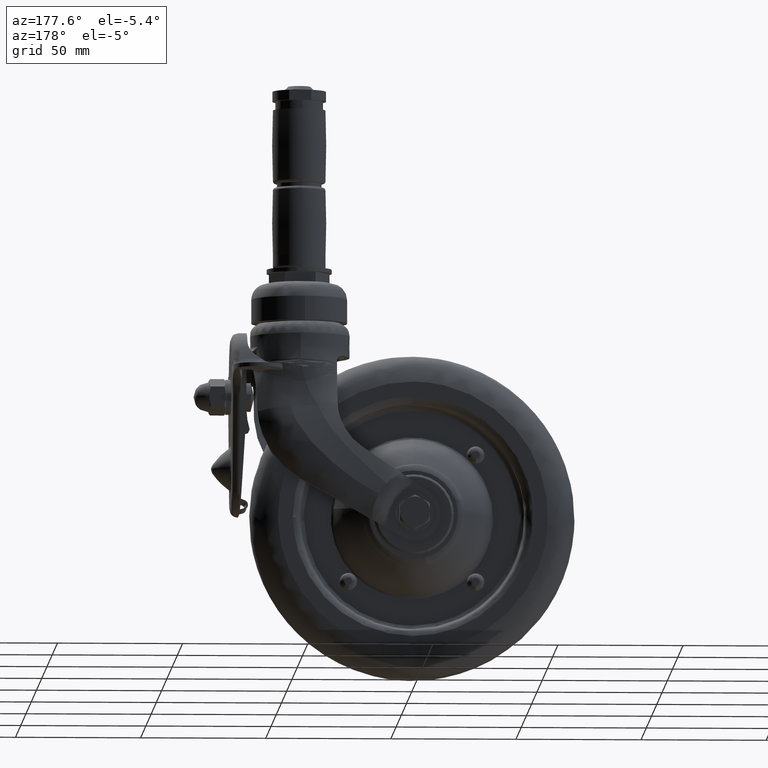
[diagram: clean part render]
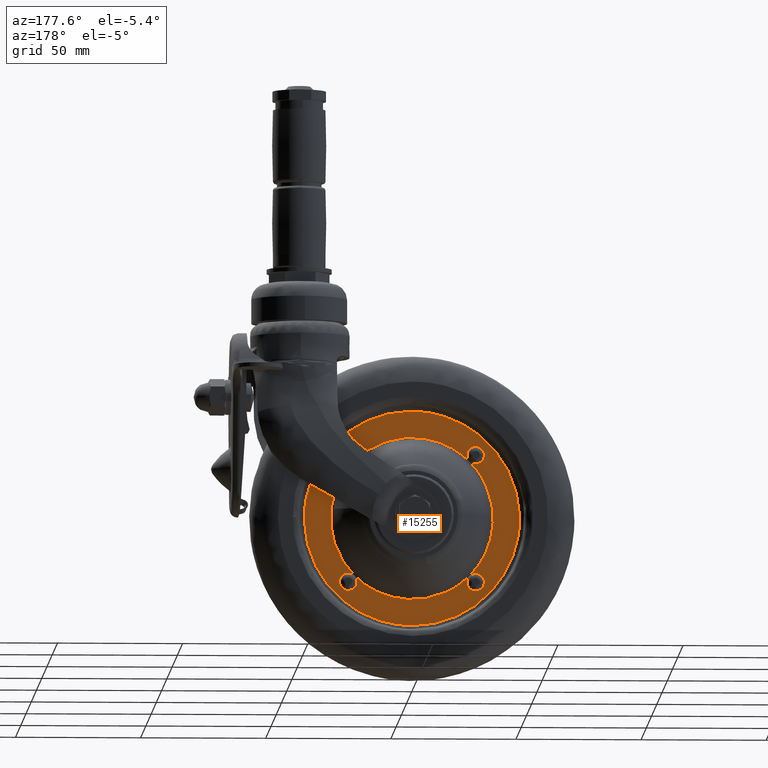
[diagram: same view with one face highlighted and labeled with its STEP entity id]
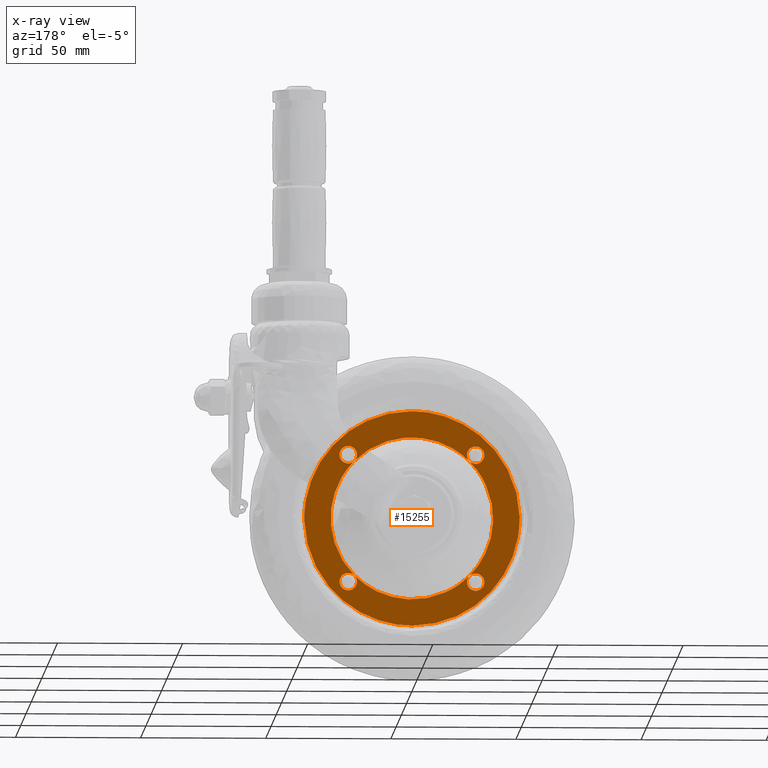
[diagram: x-ray of the same camera — body ghosted, the highlighted face saturated]
A machine part, auxiliary view. The second image highlights one B-rep face of the part: STEP entity #15255.
The next image is the same camera in x-ray: the body ghosted, the highlighted face saturated — about 0% of this face is hidden behind the body in this view.
In plain terms, the highlighted face is a freeform B-spline surface patch.
Its self-contained STEP definition (entity closure, byte-faithful):
#10958=CARTESIAN_POINT('',(-29.581760012808711,1.500000000000001,13.468716156602580));
#10959=VERTEX_POINT('',#10958);
#10973=CARTESIAN_POINT('',(-23.090573033364201,1.500000000000000,22.876019731878198));
#10974=VERTEX_POINT('',#10973);
#10975=CARTESIAN_POINT('',(-23.090573033364191,1.500000000000000,22.876019731878198));
#10976=CARTESIAN_POINT('',(-27.176240963526467,1.500000000000000,18.752032480721009));
#10977=CARTESIAN_POINT('',(-29.581760012808708,1.500000000000000,13.468716156602582));
#10985=(BOUNDED_CURVE()B_SPLINE_CURVE(2,(#10975,#10976,#10977),.UNSPECIFIED.,.F.,.U.)B_SPLINE_CURVE_WITH_KNOTS((3,3),(0.0,0.236393661518218),.UNSPECIFIED.)CURVE()GEOMETRIC_REPRESENTATION_ITEM()RATIONAL_B_SPLINE_CURVE((1.0,0.931540284204162,0.895447454175274))REPRESENTATION_ITEM(''));
#10986=EDGE_CURVE('',#10974,#10959,#10985,.T.);
#10988=CARTESIAN_POINT('',(-22.876019731878099,1.500000000000000,23.090573033364301));
#10989=VERTEX_POINT('',#10988);
#10998=CARTESIAN_POINT('',(22.876019731878198,1.500000000000000,23.090573033364201));
#10999=VERTEX_POINT('',#10998);
#11000=CARTESIAN_POINT('',(22.876019731878198,1.500000000000000,23.090573033364191));
#11001=CARTESIAN_POINT('',(1.040834E-013,1.500000000000000,45.754033053049710));
#11002=CARTESIAN_POINT('',(-22.876019731878088,1.500000000000000,23.090573033364290));
#11010=(BOUNDED_CURVE()B_SPLINE_CURVE(2,(#11000,#11001,#11002),.UNSPECIFIED.,.F.,.U.)CURVE()GEOMETRIC_REPRESENTATION_ITEM()QUASI_UNIFORM_CURVE()RATIONAL_B_SPLINE_CURVE((1.0,0.710399528666881,1.0))REPRESENTATION_ITEM(''));
#11011=EDGE_CURVE('',#10999,#10989,#11010,.T.);
#11013=CARTESIAN_POINT('',(23.090573033364301,1.500000000000000,22.876019731878099));
#11014=VERTEX_POINT('',#11013);
#11023=CARTESIAN_POINT('',(23.090573033364201,1.500000000000000,-22.876019731878198));
#11024=VERTEX_POINT('',#11023);
#11025=CARTESIAN_POINT('',(23.090573033364191,1.500000000000000,-22.876019731878191));
#11026=CARTESIAN_POINT('',(45.754033053049710,1.500000000000000,-9.714451E-014));
#11027=CARTESIAN_POINT('',(23.090573033364290,1.500000000000000,22.876019731878088));
#11035=(BOUNDED_CURVE()B_SPLINE_CURVE(2,(#11025,#11026,#11027),.UNSPECIFIED.,.F.,.U.)CURVE()GEOMETRIC_REPRESENTATION_ITEM()QUASI_UNIFORM_CURVE()RATIONAL_B_SPLINE_CURVE((1.0,0.710399528666881,1.0))REPRESENTATION_ITEM(''));
#11036=EDGE_CURVE('',#11024,#11014,#11035,.T.);
#11038=CARTESIAN_POINT('',(22.876019731878099,1.500000000000000,-23.090573033364301));
#11039=VERTEX_POINT('',#11038);
#11048=CARTESIAN_POINT('',(-13.468716156602580,1.500000000000001,-29.581760012808711));
#11049=VERTEX_POINT('',#11048);
#11050=CARTESIAN_POINT('',(-13.468716156602582,1.500000000000000,-29.581760012808708));
#11051=CARTESIAN_POINT('',(6.943162200138012,1.500000000000001,-38.875385422153393));
#11052=CARTESIAN_POINT('',(22.876019731878088,1.500000000000000,-23.090573033364290));
#11060=(BOUNDED_CURVE()B_SPLINE_CURVE(2,(#11050,#11051,#11052),.UNSPECIFIED.,.F.,.U.)B_SPLINE_CURVE_WITH_KNOTS((3,3),(0.236393661518218,1.0),.UNSPECIFIED.)CURVE()GEOMETRIC_REPRESENTATION_ITEM()RATIONAL_B_SPLINE_CURVE((0.895447454175274,0.778859244462718,1.0))REPRESENTATION_ITEM(''));
#11061=EDGE_CURVE('',#11049,#11039,#11060,.T.);
#11112=CARTESIAN_POINT('',(-22.876019731878198,1.500000000000000,-23.090573033364201));
#11113=VERTEX_POINT('',#11112);
#11114=CARTESIAN_POINT('',(-22.876019731878198,1.500000000000000,-23.090573033364180));
#11115=CARTESIAN_POINT('',(-18.752032480721009,1.500000000000000,-27.176240963526453));
#11116=CARTESIAN_POINT('',(-13.468716156602582,1.500000000000000,-29.581760012808708));
#11124=(BOUNDED_CURVE()B_SPLINE_CURVE(2,(#11114,#11115,#11116),.UNSPECIFIED.,.F.,.U.)B_SPLINE_CURVE_WITH_KNOTS((3,3),(0.0,0.236393661518218),.UNSPECIFIED.)CURVE()GEOMETRIC_REPRESENTATION_ITEM()RATIONAL_B_SPLINE_CURVE((1.0,0.931540284204162,0.895447454175274))REPRESENTATION_ITEM(''));
#11125=EDGE_CURVE('',#11113,#11049,#11124,.T.);
#11127=CARTESIAN_POINT('',(-23.090573033364301,1.500000000000000,-22.876019731878099));
#11128=VERTEX_POINT('',#11127);
#11137=CARTESIAN_POINT('',(-29.581760012808708,1.500000000000000,13.468716156602582));
#11138=CARTESIAN_POINT('',(-38.875385422153393,1.500000000000001,-6.943162200138013));
#11139=CARTESIAN_POINT('',(-23.090573033364290,1.500000000000000,-22.876019731878088));
#11147=(BOUNDED_CURVE()B_SPLINE_CURVE(2,(#11137,#11138,#11139),.UNSPECIFIED.,.F.,.U.)B_SPLINE_CURVE_WITH_KNOTS((3,3),(0.236393661518218,1.0),.UNSPECIFIED.)CURVE()GEOMETRIC_REPRESENTATION_ITEM()RATIONAL_B_SPLINE_CURVE((0.895447454175274,0.778859244462718,1.0))REPRESENTATION_ITEM(''));
#11148=EDGE_CURVE('',#10959,#11128,#11147,.T.);
#11177=CARTESIAN_POINT('',(0.0,1.500000000000000,-43.0));
#11178=VERTEX_POINT('',#11177);
#11179=CARTESIAN_POINT('',(-42.986420139943426,1.500000000000000,1.080594104088993));
#11180=VERTEX_POINT('',#11179);
#11181=CARTESIAN_POINT('',(0.0,1.500000000000000,-43.0));
#11182=CARTESIAN_POINT('',(-42.999999999999993,1.500000000000000,-42.999999999999993));
#11183=CARTESIAN_POINT('',(-43.0,1.500000000000000,0.0));
#11184=CARTESIAN_POINT('',(-43.0,1.500000000000000,0.540382381311651));
#11185=CARTESIAN_POINT('',(-42.986420139943441,1.500000000000000,1.080594104088993));
#11193=(BOUNDED_CURVE()B_SPLINE_CURVE(2,(#11181,#11182,#11183,#11184,#11185),.UNSPECIFIED.,.F.,.U.)B_SPLINE_CURVE_WITH_KNOTS((3,2,3),(0.0,0.250000000000000,0.254420108230244),.UNSPECIFIED.)CURVE()GEOMETRIC_REPRESENTATION_ITEM()RATIONAL_B_SPLINE_CURVE((1.0,0.707106781186548,1.0,0.994821521091760,0.989826157681460))REPRESENTATION_ITEM(''));
#11194=EDGE_CURVE('',#11178,#11180,#11193,.T.);
#11196=CARTESIAN_POINT('',(42.986420139943426,1.500000000000000,-1.080594104088997));
#11197=VERTEX_POINT('',#11196);
#11198=CARTESIAN_POINT('',(42.986420139943434,1.500000000000001,-1.080594104088997));
#11199=CARTESIAN_POINT('',(41.932648675755544,1.500000000000001,-43.0));
#11200=CARTESIAN_POINT('',(0.0,1.500000000000000,-43.0));
#11208=(BOUNDED_CURVE()B_SPLINE_CURVE(2,(#11198,#11199,#11200),.UNSPECIFIED.,.F.,.U.)B_SPLINE_CURVE_WITH_KNOTS((3,3),(0.754420108230244,1.0),.UNSPECIFIED.)CURVE()GEOMETRIC_REPRESENTATION_ITEM()RATIONAL_B_SPLINE_CURVE((0.989826157681460,0.712285260094788,1.0))REPRESENTATION_ITEM(''));
#11209=EDGE_CURVE('',#11197,#11178,#11208,.T.);
#11266=CARTESIAN_POINT('',(0.0,1.500000000000000,43.0));
#11267=VERTEX_POINT('',#11266);
#11268=CARTESIAN_POINT('',(-42.986420139943441,1.500000000000001,1.080594104088993));
#11269=CARTESIAN_POINT('',(-41.932648675755544,1.500000000000001,43.000000000000007));
#11270=CARTESIAN_POINT('',(0.0,1.500000000000000,43.0));
#11278=(BOUNDED_CURVE()B_SPLINE_CURVE(2,(#11268,#11269,#11270),.UNSPECIFIED.,.F.,.U.)B_SPLINE_CURVE_WITH_KNOTS((3,3),(0.254420108230244,0.500000000000000),.UNSPECIFIED.)CURVE()GEOMETRIC_REPRESENTATION_ITEM()RATIONAL_B_SPLINE_CURVE((0.989826157681460,0.712285260094788,1.0))REPRESENTATION_ITEM(''));
#11279=EDGE_CURVE('',#11180,#11267,#11278,.T.);
#11286=CARTESIAN_POINT('',(0.0,1.500000000000000,43.0));
#11287=CARTESIAN_POINT('',(42.999999999999993,1.500000000000000,42.999999999999993));
#11288=CARTESIAN_POINT('',(43.0,1.500000000000000,0.0));
#11289=CARTESIAN_POINT('',(43.0,1.500000000000000,-0.540382381311706));
#11290=CARTESIAN_POINT('',(42.986420139943441,1.500000000000000,-1.080594104088997));
#11298=(BOUNDED_CURVE()B_SPLINE_CURVE(2,(#11286,#11287,#11288,#11289,#11290),.UNSPECIFIED.,.F.,.U.)B_SPLINE_CURVE_WITH_KNOTS((3,2,3),(0.500000000000000,0.750000000000000,0.754420108230244),.UNSPECIFIED.)CURVE()GEOMETRIC_REPRESENTATION_ITEM()RATIONAL_B_SPLINE_CURVE((1.0,0.707106781186548,1.0,0.994821521091759,0.989826157681459))REPRESENTATION_ITEM(''));
#11299=EDGE_CURVE('',#11267,#11197,#11298,.T.);
#13713=CARTESIAN_POINT('',(-22.181561318949619,1.499999999984508,24.219287117129589));
#13714=VERTEX_POINT('',#13713);
#13715=CARTESIAN_POINT('',(-25.455841893200571,1.499997165853552,21.955844000005278));
#13716=VERTEX_POINT('',#13715);
#13717=CARTESIAN_POINT('',(-22.181561318949619,1.499999999984508,24.219287117129593));
#13718=CARTESIAN_POINT('',(-21.364163506599862,1.500001355037114,26.383677238332702));
#13719=CARTESIAN_POINT('',(-23.035202796993332,1.500001024170816,27.983787069409441));
#13720=CARTESIAN_POINT('',(-25.508925810327170,1.500000534372891,30.352509657652263));
#13721=CARTESIAN_POINT('',(-27.930717734209662,1.499998135425211,27.930717734005469));
#13722=CARTESIAN_POINT('',(-30.352509658092160,1.499995736477532,25.508925810358679));
#13723=CARTESIAN_POINT('',(-27.983787069948779,1.499996122265477,23.035202796935611));
#13724=CARTESIAN_POINT('',(-26.950242214857859,1.499996290596353,21.955843100599274));
#13725=CARTESIAN_POINT('',(-25.455841893200578,1.499997165853551,21.955844000005278));
#13733=(BOUNDED_CURVE()B_SPLINE_CURVE(2,(#13717,#13718,#13719,#13720,#13721,#13722,#13723,#13724,#13725),.UNSPECIFIED.,.F.,.U.)B_SPLINE_CURVE_WITH_KNOTS((3,2,2,2,3),(0.063894018477753,0.250000000000000,0.500000000000000,0.750000000000000,0.879983629714468),.UNSPECIFIED.)CURVE()GEOMETRIC_REPRESENTATION_ITEM()RATIONAL_B_SPLINE_CURVE((0.891450843555783,0.787638266009961,1.0,0.714730106666866,1.0,0.714730106666866,1.0,0.851678335265200,0.857591777310574))REPRESENTATION_ITEM(''));
#13734=EDGE_CURVE('',#13714,#13716,#13733,.T.);
#13834=CARTESIAN_POINT('',(-22.876019731878099,1.499999999999946,23.090573033364301));
#13835=CARTESIAN_POINT('',(-22.419978413175297,1.499999999999946,23.587981777584925));
#13836=CARTESIAN_POINT('',(-22.181561318949619,1.499999999984508,24.219287117129593));
#13844=(BOUNDED_CURVE()B_SPLINE_CURVE(2,(#13834,#13835,#13836),.UNSPECIFIED.,.F.,.U.)B_SPLINE_CURVE_WITH_KNOTS((3,3),(0.0,0.063894018477753),.UNSPECIFIED.)CURVE()GEOMETRIC_REPRESENTATION_ITEM()RATIONAL_B_SPLINE_CURVE((1.0,0.927091840656905,0.891450843555783))REPRESENTATION_ITEM(''));
#13845=EDGE_CURVE('',#10989,#13714,#13844,.T.);
#13848=CARTESIAN_POINT('',(-25.455841893200578,1.499997165853551,21.955844000005278));
#13849=CARTESIAN_POINT('',(-24.094216845445022,1.499998582926776,21.955844819623170));
#13850=CARTESIAN_POINT('',(-23.090573033364201,1.500000000000000,22.876019731878198));
#13858=(BOUNDED_CURVE()B_SPLINE_CURVE(2,(#13848,#13849,#13850),.UNSPECIFIED.,.F.,.U.)B_SPLINE_CURVE_WITH_KNOTS((3,3),(0.879983629714468,1.0),.UNSPECIFIED.)CURVE()GEOMETRIC_REPRESENTATION_ITEM()RATIONAL_B_SPLINE_CURVE((0.857591777310574,0.863051771401666,1.0))REPRESENTATION_ITEM(''));
#13859=EDGE_CURVE('',#13716,#10974,#13858,.T.);
#13950=CARTESIAN_POINT('',(27.673094834699270,1.499999999992371,22.747745269151011));
#13951=VERTEX_POINT('',#13950);
#13952=CARTESIAN_POINT('',(27.673094834699274,1.499999999992371,22.747745269151011));
#13953=CARTESIAN_POINT('',(27.837147849069019,1.499999999999946,22.882063371612151));
#13954=CARTESIAN_POINT('',(27.983787070010059,1.499999999999946,23.035202796767152));
#13955=CARTESIAN_POINT('',(30.352509658176047,1.499999999999946,25.508925810129686));
#13956=CARTESIAN_POINT('',(27.930717734152910,1.499999999999946,27.930717734152822));
#13957=CARTESIAN_POINT('',(25.508925810129785,1.499999999999946,30.352509658175947));
#13958=CARTESIAN_POINT('',(23.035202796767241,1.499999999999946,27.983787070009960));
#13959=CARTESIAN_POINT('',(20.561479783404700,1.499999999999946,25.615064481843973));
#13960=CARTESIAN_POINT('',(22.876019731878198,1.500000000000000,23.090573033364201));
#13968=(BOUNDED_CURVE()B_SPLINE_CURVE(2,(#13952,#13953,#13954,#13955,#13956,#13957,#13958,#13959,#13960),.UNSPECIFIED.,.F.,.U.)B_SPLINE_CURVE_WITH_KNOTS((3,2,2,2,3),(0.228868347797814,0.250000000000000,0.500000000000000,0.750000000000000,1.0),.UNSPECIFIED.)CURVE()GEOMETRIC_REPRESENTATION_ITEM()RATIONAL_B_SPLINE_CURVE((0.955850569412244,0.975887103321317,1.0,0.714730106666866,1.0,0.714730106666866,1.0,0.714730106666866,1.0))REPRESENTATION_ITEM(''));
#13969=EDGE_CURVE('',#13951,#10999,#13968,.T.);
#14022=CARTESIAN_POINT('',(25.455844000000290,1.499999999982141,21.955843999999910));
#14023=VERTEX_POINT('',#14022);
#14039=CARTESIAN_POINT('',(23.090573033364301,1.500000000000000,22.876019731878099));
#14040=CARTESIAN_POINT('',(24.094217739413878,1.499999999999946,21.955843999999679));
#14041=CARTESIAN_POINT('',(25.455844000000290,1.499999999982140,21.955843999999900));
#14049=(BOUNDED_CURVE()B_SPLINE_CURVE(2,(#14039,#14040,#14041),.UNSPECIFIED.,.F.,.U.)B_SPLINE_CURVE_WITH_KNOTS((3,3),(0.0,0.120016462546926),.UNSPECIFIED.)CURVE()GEOMETRIC_REPRESENTATION_ITEM()RATIONAL_B_SPLINE_CURVE((1.0,0.863051666124074,0.857591768916019))REPRESENTATION_ITEM(''));
#14050=EDGE_CURVE('',#11014,#14023,#14049,.T.);
#14085=CARTESIAN_POINT('',(25.455844000000290,1.499999999982140,21.955843999999900));
#14086=CARTESIAN_POINT('',(26.705884995466914,1.499999999999947,21.955844000000109));
#14087=CARTESIAN_POINT('',(27.673094834699270,1.499999999992371,22.747745269151004));
#14095=(BOUNDED_CURVE()B_SPLINE_CURVE(2,(#14085,#14086,#14087),.UNSPECIFIED.,.F.,.U.)B_SPLINE_CURVE_WITH_KNOTS((3,3),(0.120016462546926,0.228868347797813),.UNSPECIFIED.)CURVE()GEOMETRIC_REPRESENTATION_ITEM()RATIONAL_B_SPLINE_CURVE((0.857591768916019,0.852639780732394,0.955850569412244))REPRESENTATION_ITEM(''));
#14096=EDGE_CURVE('',#14023,#13951,#14095,.T.);
#14187=CARTESIAN_POINT('',(27.673094834724068,1.499999999993257,-28.163942730828509));
#14188=VERTEX_POINT('',#14187);
#14189=CARTESIAN_POINT('',(27.673094834724065,1.499999999993257,-28.163942730828513));
#14190=CARTESIAN_POINT('',(27.807702581467531,1.499999999999946,-28.053732886838198));
#14191=CARTESIAN_POINT('',(27.930717734152822,1.499999999999946,-27.930717734152910));
#14192=CARTESIAN_POINT('',(30.352509658175933,1.499999999999946,-25.508925810129785));
#14193=CARTESIAN_POINT('',(27.983787070009960,1.499999999999946,-23.035202796767241));
#14194=CARTESIAN_POINT('',(25.615064481843973,1.499999999999946,-20.561479783404685));
#14195=CARTESIAN_POINT('',(23.090573033364201,1.499999999999946,-22.876019731878198));
#14203=(BOUNDED_CURVE()B_SPLINE_CURVE(2,(#14189,#14190,#14191,#14192,#14193,#14194,#14195),.UNSPECIFIED.,.F.,.U.)B_SPLINE_CURVE_WITH_KNOTS((3,2,2,3),(0.482585822308116,0.500000000000000,0.750000000000000,1.0),.UNSPECIFIED.)CURVE()GEOMETRIC_REPRESENTATION_ITEM()RATIONAL_B_SPLINE_CURVE((0.963026366867004,0.980129037549408,1.0,0.714730106666866,1.0,0.714730106666866,1.0))REPRESENTATION_ITEM(''));
#14204=EDGE_CURVE('',#14188,#11024,#14203,.T.);
#14257=CARTESIAN_POINT('',(25.455842650181008,1.499994559010442,-28.955843999984669));
#14258=VERTEX_POINT('',#14257);
#14274=CARTESIAN_POINT('',(22.876019731878099,1.500000000000000,-23.090573033364301));
#14275=CARTESIAN_POINT('',(20.561479783404600,1.499998829061873,-25.615064481840836));
#14276=CARTESIAN_POINT('',(23.035202796767152,1.499996142158772,-27.983787069999380));
#14277=CARTESIAN_POINT('',(24.050348373186431,1.499995039530151,-28.955843457939512));
#14278=CARTESIAN_POINT('',(25.455842650181019,1.499994559010443,-28.955843999984676));
#14286=(BOUNDED_CURVE()B_SPLINE_CURVE(2,(#14274,#14275,#14276,#14277,#14278),.UNSPECIFIED.,.F.,.U.)B_SPLINE_CURVE_WITH_KNOTS((3,2,3),(0.0,0.250000000000000,0.373338891886438),.UNSPECIFIED.)CURVE()GEOMETRIC_REPRESENTATION_ITEM()RATIONAL_B_SPLINE_CURVE((1.0,0.714730106666866,1.0,0.859260509870915,0.857390241799299))REPRESENTATION_ITEM(''));
#14287=EDGE_CURVE('',#11039,#14258,#14286,.T.);
#14336=CARTESIAN_POINT('',(25.455842650181019,1.499994559010443,-28.955843999984676));
#14337=CARTESIAN_POINT('',(26.705884407112073,1.499997279501850,-28.955844481736328));
#14338=CARTESIAN_POINT('',(27.673094834724072,1.499999999993258,-28.163942730828509));
#14346=(BOUNDED_CURVE()B_SPLINE_CURVE(2,(#14336,#14337,#14338),.UNSPECIFIED.,.F.,.U.)B_SPLINE_CURVE_WITH_KNOTS((3,3),(0.373338891886438,0.482585822308117),.UNSPECIFIED.)CURVE()GEOMETRIC_REPRESENTATION_ITEM()RATIONAL_B_SPLINE_CURVE((0.857390241799299,0.855733659331558,0.963026366867004))REPRESENTATION_ITEM(''));
#14347=EDGE_CURVE('',#14258,#14188,#14346,.T.);
#14438=CARTESIAN_POINT('',(-22.607452873219788,1.499999999990154,-27.489724033059812));
#14439=VERTEX_POINT('',#14438);
#14440=CARTESIAN_POINT('',(-22.607452873219795,1.499999999990154,-27.489724033059808));
#14441=CARTESIAN_POINT('',(-20.959149567873009,1.499999999999946,-25.181322143168348));
#14442=CARTESIAN_POINT('',(-22.876019731878198,1.499999999999946,-23.090573033364201));
#14450=(BOUNDED_CURVE()B_SPLINE_CURVE(2,(#14440,#14441,#14442),.UNSPECIFIED.,.F.,.U.)B_SPLINE_CURVE_WITH_KNOTS((3,3),(0.782282380347794,1.0),.UNSPECIFIED.)CURVE()GEOMETRIC_REPRESENTATION_ITEM()RATIONAL_B_SPLINE_CURVE((0.935839898027909,0.751566871460284,1.0))REPRESENTATION_ITEM(''));
#14451=EDGE_CURVE('',#14439,#11113,#14450,.T.);
#14504=CARTESIAN_POINT('',(-25.455842650181111,1.499994559010442,-28.955843999984570));
#14505=VERTEX_POINT('',#14504);
#14521=CARTESIAN_POINT('',(-23.090573033364301,1.500000000000000,-22.876019731878099));
#14522=CARTESIAN_POINT('',(-25.615064481844083,1.500001035670960,-20.561479783407471));
#14523=CARTESIAN_POINT('',(-27.983787070010059,1.499998396603284,-23.035202796762711));
#14524=CARTESIAN_POINT('',(-30.352509658176047,1.499995757535608,-25.508925810117962));
#14525=CARTESIAN_POINT('',(-27.930717734152910,1.499994607443906,-27.930717734137890));
#14526=CARTESIAN_POINT('',(-26.905590909192490,1.499994120618492,-28.955844559096956));
#14527=CARTESIAN_POINT('',(-25.455842650181111,1.499994559010443,-28.955843999984566));
#14535=(BOUNDED_CURVE()B_SPLINE_CURVE(2,(#14521,#14522,#14523,#14524,#14525,#14526,#14527),.UNSPECIFIED.,.F.,.U.)B_SPLINE_CURVE_WITH_KNOTS((3,2,2,3),(0.0,0.250000000000000,0.500000000000000,0.626661108113562),.UNSPECIFIED.)CURVE()GEOMETRIC_REPRESENTATION_ITEM()RATIONAL_B_SPLINE_CURVE((1.0,0.714730106666866,1.0,0.714730106666866,1.0,0.855469596795950,0.857390241799299))REPRESENTATION_ITEM(''));
#14536=EDGE_CURVE('',#11128,#14505,#14535,.T.);
#14571=CARTESIAN_POINT('',(-25.455842650181111,1.499994559010443,-28.955843999984566));
#14572=CARTESIAN_POINT('',(-24.050348373421141,1.499996681465336,-28.955843458272525));
#14573=CARTESIAN_POINT('',(-23.035202797254829,1.499998970012650,-27.983787070689960));
#14574=CARTESIAN_POINT('',(-22.798164351890300,1.499999504392852,-27.756810033771377));
#14575=CARTESIAN_POINT('',(-22.607452873219792,1.499999999990154,-27.489724033059812));
#14583=(BOUNDED_CURVE()B_SPLINE_CURVE(2,(#14571,#14572,#14573,#14574,#14575),.UNSPECIFIED.,.F.,.U.)B_SPLINE_CURVE_WITH_KNOTS((3,2,3),(0.626661108113562,0.750000000000000,0.782282380347793),.UNSPECIFIED.)CURVE()GEOMETRIC_REPRESENTATION_ITEM()RATIONAL_B_SPLINE_CURVE((0.857390241799299,0.859260509870915,1.0,0.963163235206581,0.935839898027910))REPRESENTATION_ITEM(''));
#14584=EDGE_CURVE('',#14505,#14439,#14583,.T.);
#15224=CARTESIAN_POINT('',(-47.280763345291739,1.500000000000000,47.295699833315318));
#15225=CARTESIAN_POINT('',(-47.280763345291739,1.500000000000000,-47.295702140015067));
#15226=CARTESIAN_POINT('',(47.280765651263003,1.500000000000000,47.295699833315318));
#15227=CARTESIAN_POINT('',(47.280765651263003,1.500000000000000,-47.295702140015067));
#15228=B_SPLINE_SURFACE_WITH_KNOTS('',1,1,((#15224,#15226),(#15225,#15227)),.UNSPECIFIED.,.F.,.F.,.U.,(2,2),(2,2),(0.0,94.591401973330392),(0.0,94.561528996554742),.UNSPECIFIED.);
#15229=ORIENTED_EDGE('',*,*,#11194,.T.);
#15230=ORIENTED_EDGE('',*,*,#11279,.T.);
#15231=ORIENTED_EDGE('',*,*,#11299,.T.);
#15232=ORIENTED_EDGE('',*,*,#11209,.T.);
#15233=EDGE_LOOP('',(#15229,#15230,#15231,#15232));
#15234=FACE_OUTER_BOUND('',#15233,.T.);
#15235=ORIENTED_EDGE('',*,*,#11011,.T.);
#15236=ORIENTED_EDGE('',*,*,#13845,.T.);
#15237=ORIENTED_EDGE('',*,*,#13734,.T.);
#15238=ORIENTED_EDGE('',*,*,#13859,.T.);
#15239=ORIENTED_EDGE('',*,*,#10986,.T.);
#15240=ORIENTED_EDGE('',*,*,#11148,.T.);
#15241=ORIENTED_EDGE('',*,*,#14536,.T.);
#15242=ORIENTED_EDGE('',*,*,#14584,.T.);
#15243=ORIENTED_EDGE('',*,*,#14451,.T.);
#15244=ORIENTED_EDGE('',*,*,#11125,.T.);
#15245=ORIENTED_EDGE('',*,*,#11061,.T.);
#15246=ORIENTED_EDGE('',*,*,#14287,.T.);
#15247=ORIENTED_EDGE('',*,*,#14347,.T.);
#15248=ORIENTED_EDGE('',*,*,#14204,.T.);
#15249=ORIENTED_EDGE('',*,*,#11036,.T.);
#15250=ORIENTED_EDGE('',*,*,#14050,.T.);
#15251=ORIENTED_EDGE('',*,*,#14096,.T.);
#15252=ORIENTED_EDGE('',*,*,#13969,.T.);
#15253=EDGE_LOOP('',(#15235,#15236,#15237,#15238,#15239,#15240,#15241,#15242,#15243,#15244,#15245,#15246,#15247,#15248,#15249,#15250,#15251,#15252));
#15254=FACE_BOUND('',#15253,.T.);
#15255=ADVANCED_FACE('',(#15234,#15254),#15228,.F.);